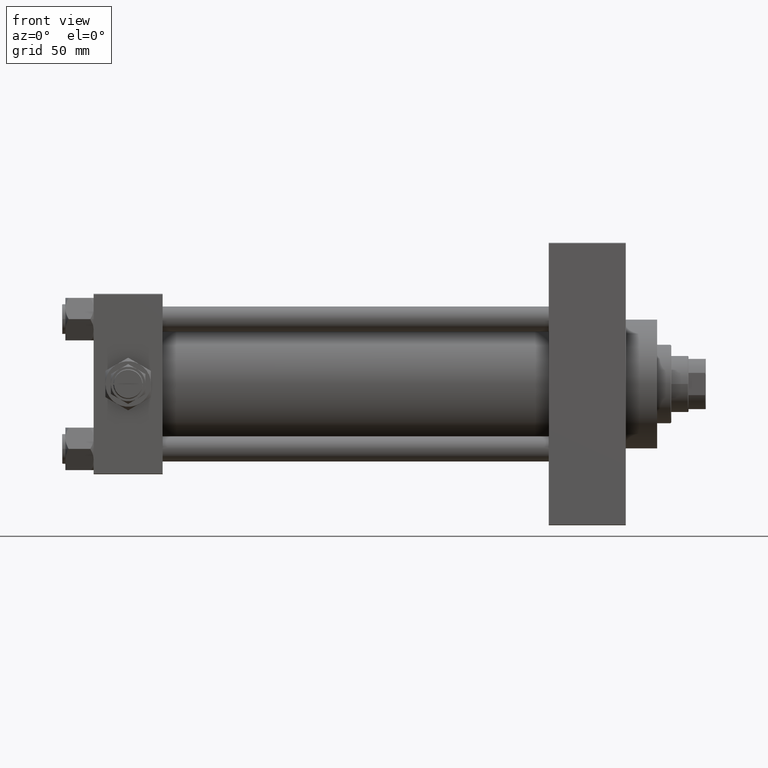
[diagram: clean part render]
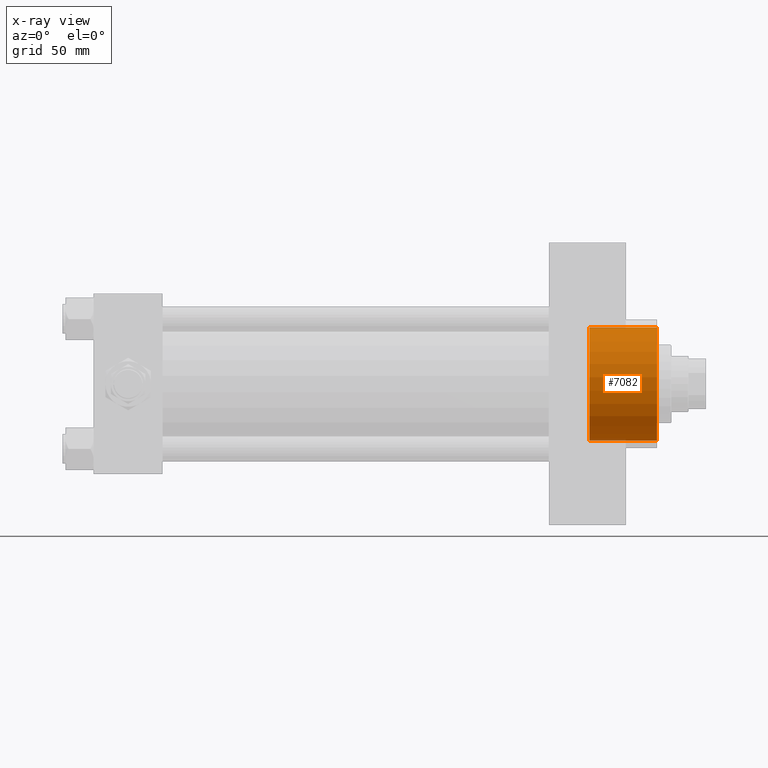
[diagram: x-ray — body ghosted, one internal face saturated and labeled with its STEP entity id]
A machine part, front view, then the same camera in x-ray: the body is ghosted and one INTERNAL B-rep face — a face not visible from any outside direction — is saturated and labeled: STEP entity #7082.
In plain terms, the highlighted cylindrical surface (partial cylindrical patch) has radius 36 mm, axis along (1, 0, 0).
Its self-contained STEP definition (entity closure, byte-faithful):
#516 = DIRECTION ( 'NONE',  ( 0.000000000000000000, 0.000000000000000000, -1.000000000000000000 ) ) ;
#1907 = AXIS2_PLACEMENT_3D ( 'NONE', #4744, #16181, #516 ) ;
#4507 = EDGE_LOOP ( 'NONE', ( #16495, #9270, #48542, #35512 ) ) ;
#4744 = CARTESIAN_POINT ( 'NONE',  ( 315.7399999999999523, 0.000000000000000000, 0.000000000000000000 ) ) ;
#6406 = VECTOR ( 'NONE', #7249, 1000.000000000000000 ) ;
#7082 = ADVANCED_FACE ( 'NONE', ( #41767 ), #30579, .F. ) ;
#7116 = AXIS2_PLACEMENT_3D ( 'NONE', #47399, #13328, #31513 ) ;
#7249 = DIRECTION ( 'NONE',  ( 1.000000000000000000, -0.000000000000000000, -0.000000000000000000 ) ) ;
#7665 = VERTEX_POINT ( 'NONE', #16690 ) ;
#9270 = ORIENTED_EDGE ( 'NONE', *, *, #48085, .T. ) ;
#10618 = EDGE_CURVE ( 'NONE', #42189, #18785, #18266, .T. ) ;
#13328 = DIRECTION ( 'NONE',  ( 1.000000000000000000, 0.000000000000000000, 0.000000000000000000 ) ) ;
#13645 = VECTOR ( 'NONE', #47397, 1000.000000000000000 ) ;
#14942 = LINE ( 'NONE', #34624, #6406 ) ;
#15098 = EDGE_CURVE ( 'NONE', #7665, #18785, #14942, .T. ) ;
#16181 = DIRECTION ( 'NONE',  ( 1.000000000000000000, 0.000000000000000000, 0.000000000000000000 ) ) ;
#16495 = ORIENTED_EDGE ( 'NONE', *, *, #22902, .F. ) ;
#16690 = CARTESIAN_POINT ( 'NONE',  ( 315.7399999999999523, 0.000000000000000000, -36.00000000000000000 ) ) ;
#18266 = CIRCLE ( 'NONE', #7116, 36.00000000000000000 ) ;
#18785 = VERTEX_POINT ( 'NONE', #41193 ) ;
#20795 = LINE ( 'NONE', #28507, #13645 ) ;
#21741 = CIRCLE ( 'NONE', #1907, 36.00000000000000000 ) ;
#22902 = EDGE_CURVE ( 'NONE', #37618, #7665, #21741, .T. ) ;
#23101 = DIRECTION ( 'NONE',  ( 0.000000000000000000, 0.000000000000000000, -1.000000000000000000 ) ) ;
#26842 = CARTESIAN_POINT ( 'NONE',  ( 315.7399999999999523, 0.000000000000000000, 0.000000000000000000 ) ) ;
#28479 = AXIS2_PLACEMENT_3D ( 'NONE', #26842, #42016, #23101 ) ;
#28507 = CARTESIAN_POINT ( 'NONE',  ( 315.7399999999999523, 4.408728476930470856E-15, 36.00000000000000000 ) ) ;
#30579 = CYLINDRICAL_SURFACE ( 'NONE', #28479, 36.00000000000000000 ) ;
#31513 = DIRECTION ( 'NONE',  ( 0.000000000000000000, 0.000000000000000000, -1.000000000000000000 ) ) ;
#32714 = CARTESIAN_POINT ( 'NONE',  ( 359.0000000000000000, 4.408728476930470856E-15, 36.00000000000000000 ) ) ;
#34624 = CARTESIAN_POINT ( 'NONE',  ( 315.7399999999999523, 0.000000000000000000, -36.00000000000000000 ) ) ;
#35512 = ORIENTED_EDGE ( 'NONE', *, *, #15098, .F. ) ;
#37618 = VERTEX_POINT ( 'NONE', #41010 ) ;
#41010 = CARTESIAN_POINT ( 'NONE',  ( 315.7399999999999523, 4.408728476930470856E-15, 36.00000000000000000 ) ) ;
#41193 = CARTESIAN_POINT ( 'NONE',  ( 359.0000000000000000, 0.000000000000000000, -36.00000000000000000 ) ) ;
#41767 = FACE_OUTER_BOUND ( 'NONE', #4507, .T. ) ;
#42016 = DIRECTION ( 'NONE',  ( 1.000000000000000000, -0.000000000000000000, -0.000000000000000000 ) ) ;
#42189 = VERTEX_POINT ( 'NONE', #32714 ) ;
#47397 = DIRECTION ( 'NONE',  ( 1.000000000000000000, -0.000000000000000000, -0.000000000000000000 ) ) ;
#47399 = CARTESIAN_POINT ( 'NONE',  ( 359.0000000000000000, 0.000000000000000000, 0.000000000000000000 ) ) ;
#48085 = EDGE_CURVE ( 'NONE', #37618, #42189, #20795, .T. ) ;
#48542 = ORIENTED_EDGE ( 'NONE', *, *, #10618, .T. ) ;